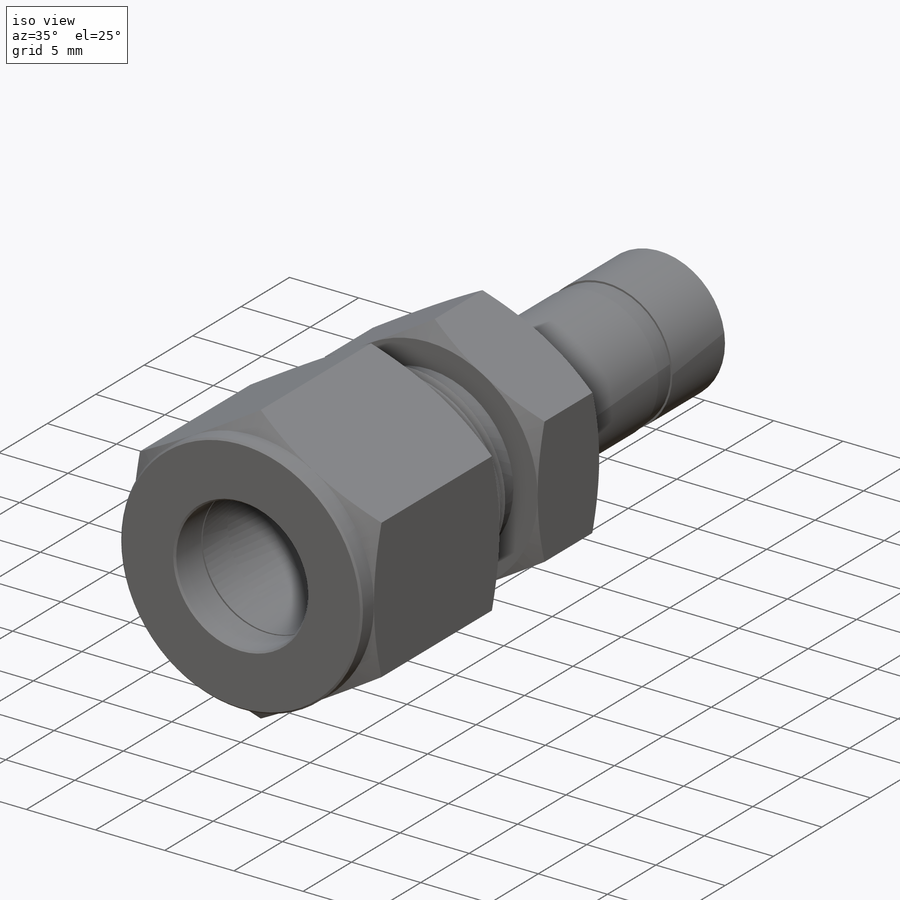
[diagram: iso view]
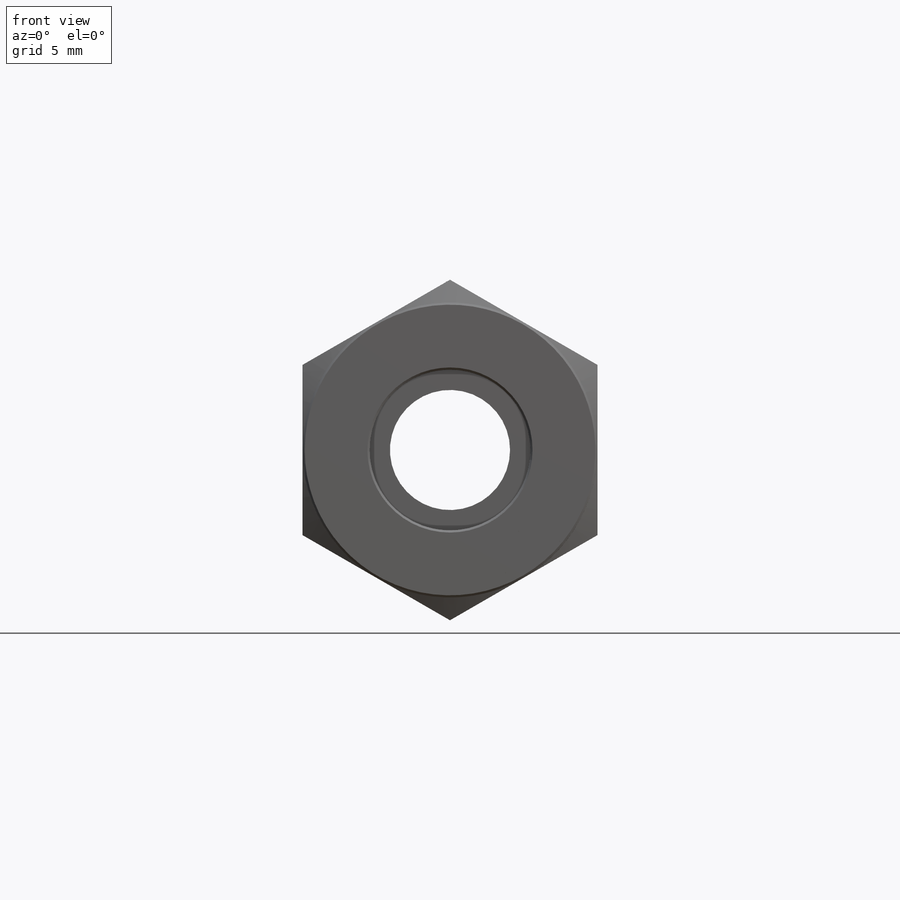
[diagram: front view]
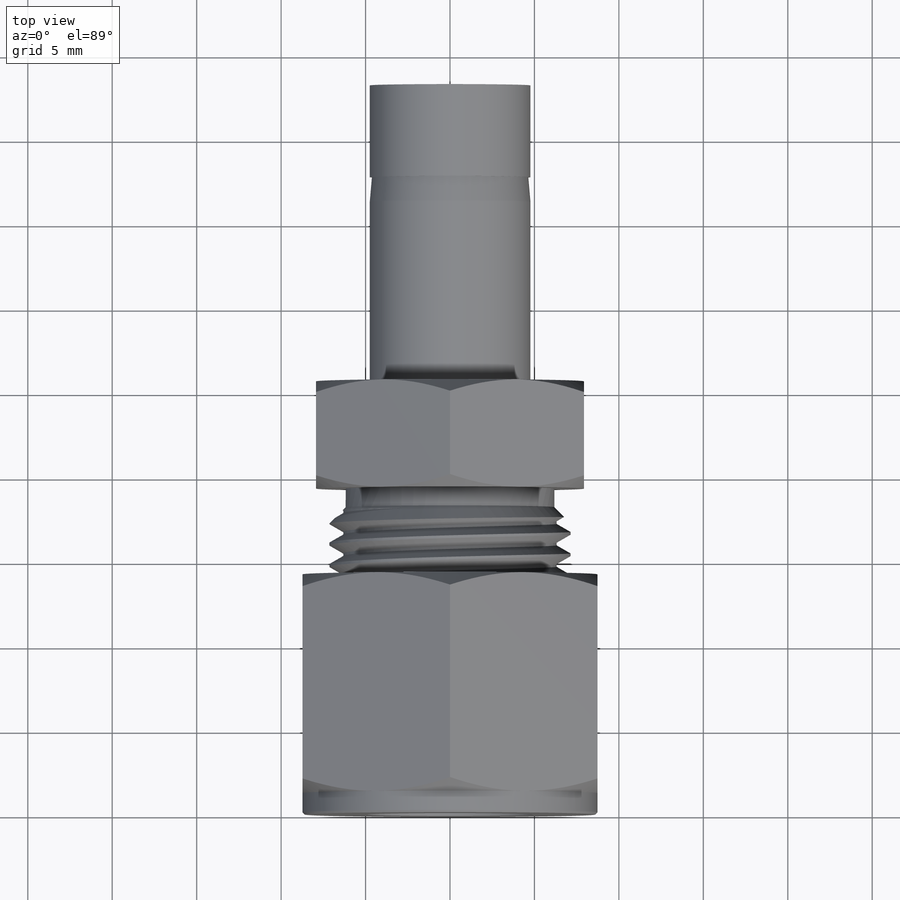
[diagram: top view]
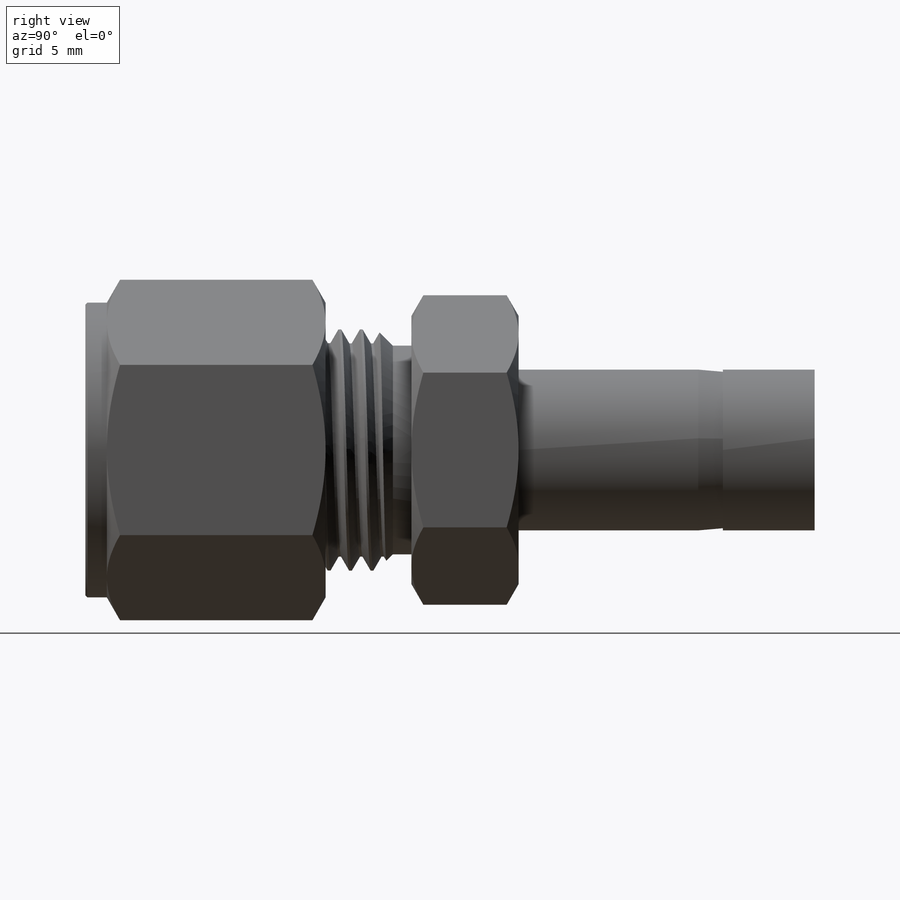
[diagram: right view]
SOLIDWORKS PART (.sldprt)
format: sldprt  version: not decoded by parser v0  size: 890,880 bytes
history: native  units: mm
features: sketch x11, revolve x4, extrude x2, cut_revolve x2, material x1, chamfer x1, helix x1, sweep x1 (+14 scaffold rows collapsed)
feature tree (37):
  scaffold x14  (default folders/planes/origin — collapsed)
  material  "Material <not specified>"
  sketch  "Sketch1"  dims[c1.BF R=0.127mm c1.BF ID=6.35mm c1.BF OD 2=7.9375mm c1.BF Lg=~1.55575mm c1.BF Lg 1=0.508mm c1.D2=0.3175mm c1.Gap=1.27mm c1.FF Lg=3.81mm c1.FF ID=6.35mm c1.FF OD 1=6.985mm c1.FF OD 2=8.255mm c1.BF OD 1=7.3025mm c1.ID=6.35mm c2.FF Lg=3.81mm c2.D1=~1.55575mm c2.D2=~1.55575mm c2.D3=~1.55575mm c3.D2=~1.55575mm c3.D3=~1.55575mm c4.D2=~1.55575mm c4.D3=~1.55575mm c5.D2=~1.55575mm c5.BF Lg=~1.55575mm c5.BF C=0.127mm c5.Nut Lg=12.7mm c5.Tube OD=9.525mm c5.Nut Hex=17.4625mm c5.Straight Thread OD=14.2875mm c5.Nut Thread Lg=7.62mm c5.Straight Thread Pitch=1.27mm c5.Lg 1=1.27mm c5.D1=7.62mm c6.D2=~13.520281mm c6.D3=~13.520281mm c6.Nut Thread Lg=8.5344mm c6.Nut Lg=14.224mm c6.Lg=43.18mm c6.Body Hex=11.1125mm c6.C=19.304mm c6.Straight Thread Lg=10.414mm c6.D=26.162mm c6.FF OD 1=10.16mm c6.FF OD 2=12.573mm c6.FF Lg=4.8768mm c6.BF Lg=2.5908mm c6.BF Lg 1=1.143mm c6.BF OD 1=10.8712mm c6.BF OD 2=12.446mm c7.D=26.162mm c8.D=26.162mm c8.Insertion Depth=17.018mm c8.E=7.112mm c9.D=35.814mm c9.K=17.526mm c9.Pipe OD=13.716mm c9.D2=~16.364682mm c9.A1=~1.783333deg c9.L4=~15.10284mm c9.Pipe Pitch=~1.411111mm c9.L2=~10.20572mm c9.Pipe ID=9.2456mm c9.Body Hex=15.875mm c9.Stem OD=9.525mm c9.L1=5.4356mm]
  sketch  "Sketch2"
  extrude  "Boss-Extrude1"  [1 undecoded]
  sketch  "Sketch3"  dims[c1.D1=~1.105142mm c2.D1=30.0deg c2.D2=1.27mm c2.D3=2.54mm c2.D4=2.54mm c2.D5=2.54mm c2.D6=2.54mm c3.D5=2.54mm c3.D6=2.54mm c4.D5=2.54mm c4.D6=2.54mm c5.D5=2.54mm c5.D3=2.54mm c5.D4=2.54mm]
  cut_revolve  "Cut-Revolve1"  Angle=360deg
  chamfer  "Chamfer1"  Distance=0.127mm Angle=45deg
  sketch  "Sketch4"  dims[D1=11.938mm]
  revolve  "Revolve1"  Angle=360deg
  sketch  "Sketch5"
  helix  "Helix/Spiral1"  Pitch=13.208mm
  sketch  "Sketch6"  dims[D1=1.27mm D2=~0.15875mm]
  sweep  "Cut-Sweep1"
  sketch  "Sketch7"
  extrude  "Boss-Extrude2"  [1 undecoded]
  sketch  "Sketch8"  dims[c1.D1=~0.982348mm c2.D1=30.0deg c2.D2=~1.516834mm c3.D1=~0.982348mm c4.D1=30.0deg]
  cut_revolve  "Cut-Revolve2"  Angle=360deg
  sketch  "Sketch9"
  revolve  "Revolve2"  Angle=360deg
  sketch  "Sketch10"
  revolve  "Revolve3"  Angle=360deg
  sketch  "Sketch11"  dims[c1.D1=0.127mm c1.D2=~6.654775mm c2.D2=5.0deg]
  revolve  "Revolve4"  Angle=360deg
decode coverage: 14 of 22 modeling features carry decoded parameters
note: ~ marks probable driven/reference dimensions
note: 2 parameter values undecoded
note: suppression state not decoded; provenance and decode notes live in map.json
